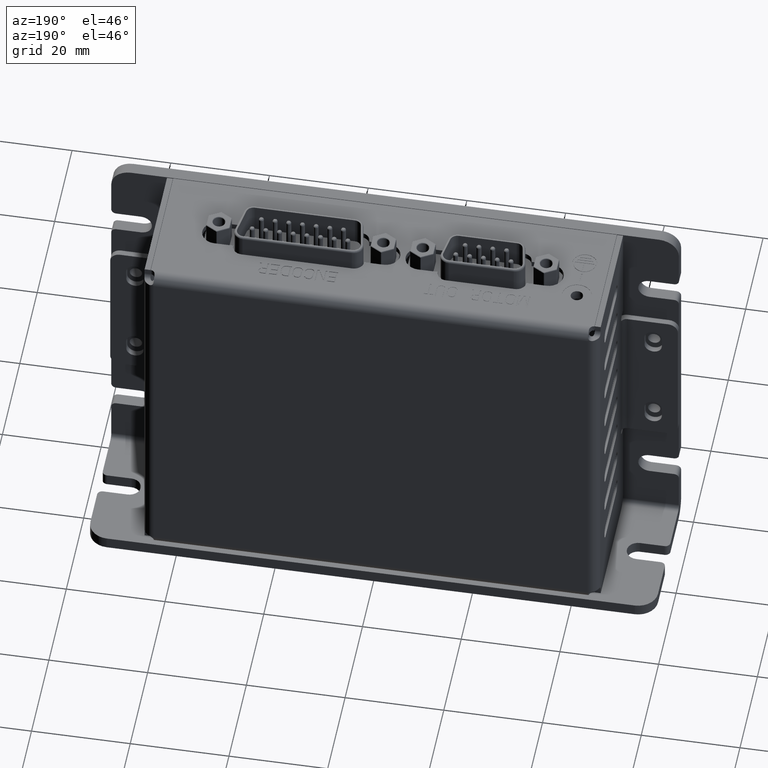
[diagram: clean part render]
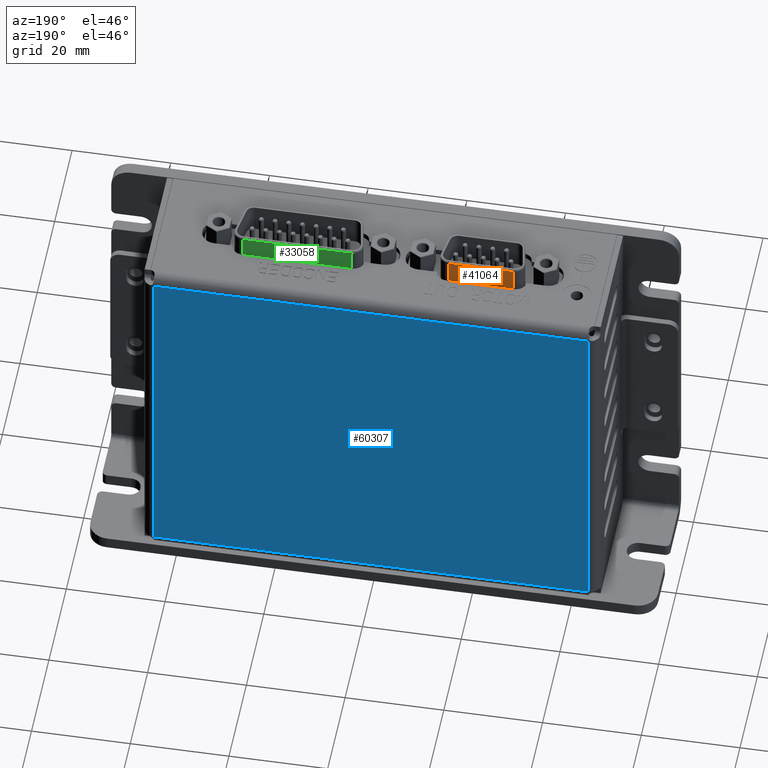
[diagram: same view with three faces highlighted in distinct colors, each labeled with its STEP entity id]
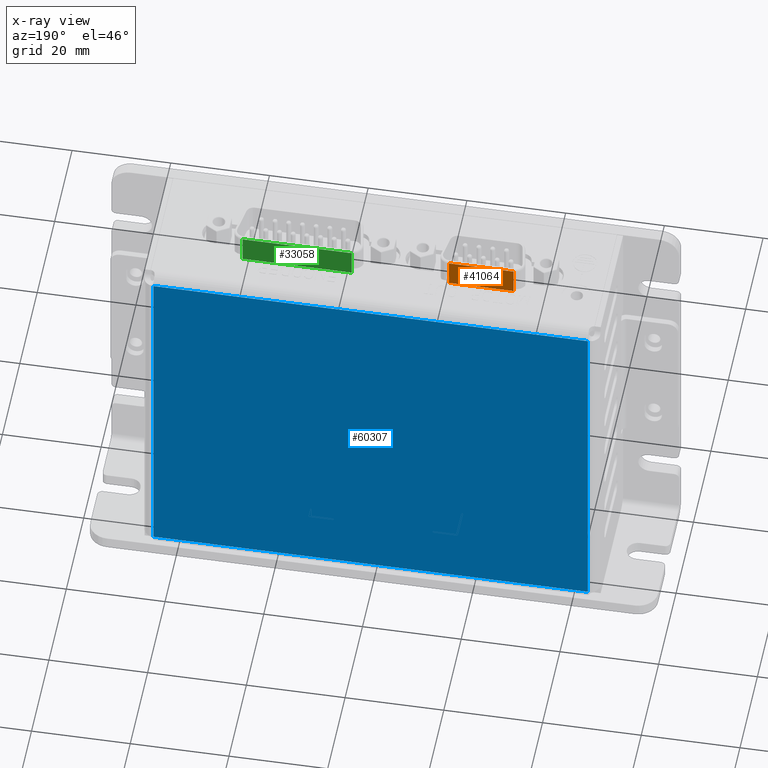
[diagram: x-ray of the same camera — body ghosted, the three highlighted faces saturated]
A machine part, auxiliary view with three faces highlighted in distinct colors.
The next image is the same camera in x-ray (body ghosted, the three faces saturated) — at least one of them is partly hidden behind the body in this view.
Their STEP definitions:

[orange] entity #41064 — the highlighted planar face has unit normal (0, 1, 0).
#37347=DIRECTION('',(-1.E0,0.E0,0.E0));
#37348=VECTOR('',#37347,1.314360147450E1);
#37349=CARTESIAN_POINT('',(6.571800737461E0,4.E0,5.6E0));
#37350=LINE('',#37349,#37348);
#37351=DIRECTION('',(-1.078865568311E-10,0.E0,-1.E0));
#37352=VECTOR('',#37351,5.6E0);
#37353=CARTESIAN_POINT('',(-6.571800737041E0,4.E0,5.6E0));
#37354=LINE('',#37353,#37352);
#37355=DIRECTION('',(1.E0,0.E0,0.E0));
#37356=VECTOR('',#37355,1.314360147529E1);
#37357=CARTESIAN_POINT('',(-6.571800737645E0,4.E0,0.E0));
#37358=LINE('',#37357,#37356);
#37359=DIRECTION('',(3.286133270259E-11,0.E0,-1.E0));
#37360=VECTOR('',#37359,5.6E0);
#37361=CARTESIAN_POINT('',(6.571800737461E0,4.E0,5.6E0));
#37362=LINE('',#37361,#37360);
#38855=CARTESIAN_POINT('',(-6.571800737645E0,4.E0,0.E0));
#38856=CARTESIAN_POINT('',(6.571800737645E0,4.E0,0.E0));
#38857=VERTEX_POINT('',#38855);
#38858=VERTEX_POINT('',#38856);
#39331=CARTESIAN_POINT('',(-6.571800737645E0,4.E0,5.6E0));
#39333=VERTEX_POINT('',#39331);
#39357=CARTESIAN_POINT('',(6.571800737645E0,4.E0,5.6E0));
#39358=VERTEX_POINT('',#39357);
#41051=CARTESIAN_POINT('',(8.25E0,4.E0,0.E0));
#41052=DIRECTION('',(0.E0,1.E0,0.E0));
#41053=DIRECTION('',(-1.E0,0.E0,0.E0));
#41054=AXIS2_PLACEMENT_3D('',#41051,#41052,#41053);
#41055=PLANE('',#41054);
#41057=ORIENTED_EDGE('',*,*,#41056,.T.);
#41058=ORIENTED_EDGE('',*,*,#41046,.T.);
#41059=ORIENTED_EDGE('',*,*,#39570,.T.);
#41061=ORIENTED_EDGE('',*,*,#41060,.F.);
#41062=EDGE_LOOP('',(#41057,#41058,#41059,#41061));
#41063=FACE_OUTER_BOUND('',#41062,.F.);
#41064=ADVANCED_FACE('',(#41063),#41055,.T.);
#39570=EDGE_CURVE('',#38857,#38858,#37358,.T.);
#41046=EDGE_CURVE('',#39333,#38857,#37354,.T.);
#41056=EDGE_CURVE('',#39358,#39333,#37350,.T.);
#41060=EDGE_CURVE('',#39358,#38858,#37362,.T.);

[blue] entity #60307 — the highlighted planar face has unit normal (0, 1, 0).
#50739=DIRECTION('',(-1.E0,0.E0,0.E0));
#50740=VECTOR('',#50739,8.8E1);
#50741=CARTESIAN_POINT('',(4.4E1,-3.6E1,0.E0));
#50742=LINE('',#50741,#50740);
#50795=DIRECTION('',(0.E0,-1.E0,0.E0));
#50796=VECTOR('',#50795,7.2E1);
#50797=CARTESIAN_POINT('',(4.4E1,3.6E1,0.E0));
#50798=LINE('',#50797,#50796);
#50858=DIRECTION('',(1.E0,0.E0,0.E0));
#50859=VECTOR('',#50858,8.8E1);
#50860=CARTESIAN_POINT('',(-4.4E1,3.6E1,0.E0));
#50861=LINE('',#50860,#50859);
#51096=DIRECTION('',(0.E0,1.E0,0.E0));
#51097=VECTOR('',#51096,7.2E1);
#51098=CARTESIAN_POINT('',(-4.4E1,-3.6E1,0.E0));
#51099=LINE('',#51098,#51097);
#56925=CARTESIAN_POINT('',(4.4E1,3.6E1,0.E0));
#56926=CARTESIAN_POINT('',(4.4E1,-3.6E1,0.E0));
#56927=VERTEX_POINT('',#56925);
#56928=VERTEX_POINT('',#56926);
#56937=CARTESIAN_POINT('',(-4.4E1,-3.6E1,0.E0));
#56938=VERTEX_POINT('',#56937);
#56945=CARTESIAN_POINT('',(-4.4E1,3.6E1,0.E0));
#56946=VERTEX_POINT('',#56945);
#60293=CARTESIAN_POINT('',(0.E0,0.E0,0.E0));
#60294=DIRECTION('',(0.E0,0.E0,1.E0));
#60295=DIRECTION('',(1.E0,0.E0,0.E0));
#60296=AXIS2_PLACEMENT_3D('',#60293,#60294,#60295);
#60297=PLANE('',#60296);
#60299=ORIENTED_EDGE('',*,*,#60298,.T.);
#60300=ORIENTED_EDGE('',*,*,#60271,.T.);
#60302=ORIENTED_EDGE('',*,*,#60301,.T.);
#60304=ORIENTED_EDGE('',*,*,#60303,.T.);
#60305=EDGE_LOOP('',(#60299,#60300,#60302,#60304));
#60306=FACE_OUTER_BOUND('',#60305,.F.);
#60307=ADVANCED_FACE('',(#60306),#60297,.T.);
#60271=EDGE_CURVE('',#56928,#56938,#50742,.T.);
#60298=EDGE_CURVE('',#56927,#56928,#50798,.T.);
#60301=EDGE_CURVE('',#56938,#56946,#51099,.T.);
#60303=EDGE_CURVE('',#56946,#56927,#50861,.T.);

[green] entity #33058 — the highlighted planar face has unit normal (0, 1, 0).
#28157=DIRECTION('',(-1.E0,0.E0,0.E0));
#28158=VECTOR('',#28157,2.210519385058E1);
#28159=CARTESIAN_POINT('',(1.105259692569E1,4.6E0,5.6E0));
#28160=LINE('',#28159,#28158);
#28161=DIRECTION('',(-2.109442779183E-10,0.E0,-1.E0));
#28162=VECTOR('',#28161,5.6E0);
#28163=CARTESIAN_POINT('',(-1.105259692489E1,4.6E0,5.6E0));
#28164=LINE('',#28163,#28162);
#28165=DIRECTION('',(1.E0,0.E0,0.E0));
#28166=VECTOR('',#28165,2.210519385214E1);
#28167=CARTESIAN_POINT('',(-1.105259692607E1,4.6E0,0.E0));
#28168=LINE('',#28167,#28166);
#28169=DIRECTION('',(6.775310471393E-11,0.E0,-1.E0));
#28170=VECTOR('',#28169,5.6E0);
#28171=CARTESIAN_POINT('',(1.105259692569E1,4.6E0,5.6E0));
#28172=LINE('',#28171,#28170);
#29977=CARTESIAN_POINT('',(-1.105259692607E1,4.6E0,0.E0));
#29978=CARTESIAN_POINT('',(1.105259692607E1,4.6E0,0.E0));
#29979=VERTEX_POINT('',#29977);
#29980=VERTEX_POINT('',#29978);
#30445=CARTESIAN_POINT('',(-1.105259692607E1,4.6E0,5.6E0));
#30447=VERTEX_POINT('',#30445);
#30471=CARTESIAN_POINT('',(1.105259692607E1,4.6E0,5.6E0));
#30472=VERTEX_POINT('',#30471);
#33045=CARTESIAN_POINT('',(1.2625E1,4.6E0,0.E0));
#33046=DIRECTION('',(0.E0,1.E0,0.E0));
#33047=DIRECTION('',(-1.E0,0.E0,0.E0));
#33048=AXIS2_PLACEMENT_3D('',#33045,#33046,#33047);
#33049=PLANE('',#33048);
#33051=ORIENTED_EDGE('',*,*,#33050,.T.);
#33052=ORIENTED_EDGE('',*,*,#33040,.T.);
#33053=ORIENTED_EDGE('',*,*,#30844,.T.);
#33055=ORIENTED_EDGE('',*,*,#33054,.F.);
#33056=EDGE_LOOP('',(#33051,#33052,#33053,#33055));
#33057=FACE_OUTER_BOUND('',#33056,.F.);
#33058=ADVANCED_FACE('',(#33057),#33049,.T.);
#30844=EDGE_CURVE('',#29979,#29980,#28168,.T.);
#33040=EDGE_CURVE('',#30447,#29979,#28164,.T.);
#33050=EDGE_CURVE('',#30472,#30447,#28160,.T.);
#33054=EDGE_CURVE('',#30472,#29980,#28172,.T.);